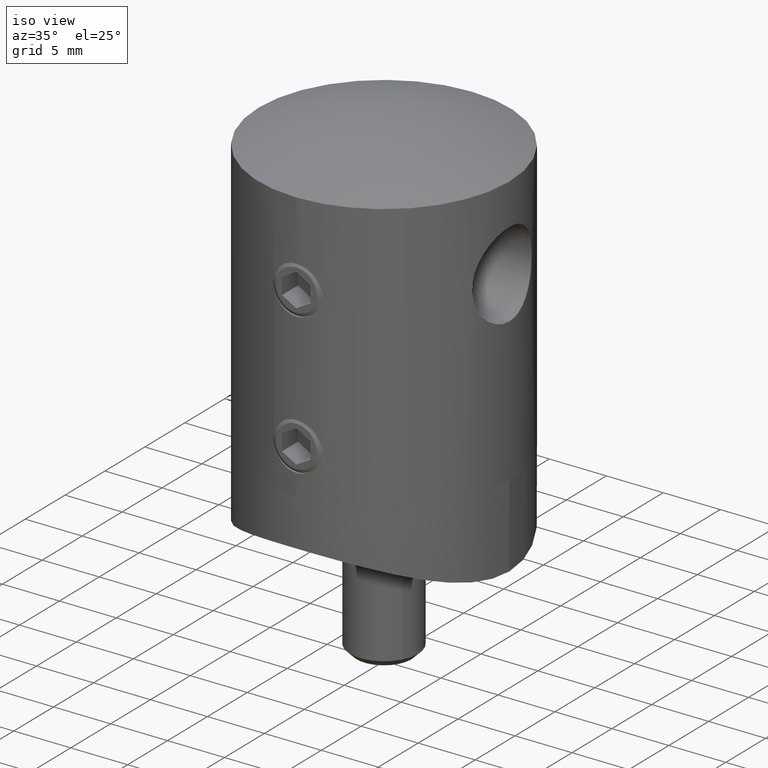
[diagram: clean part render]
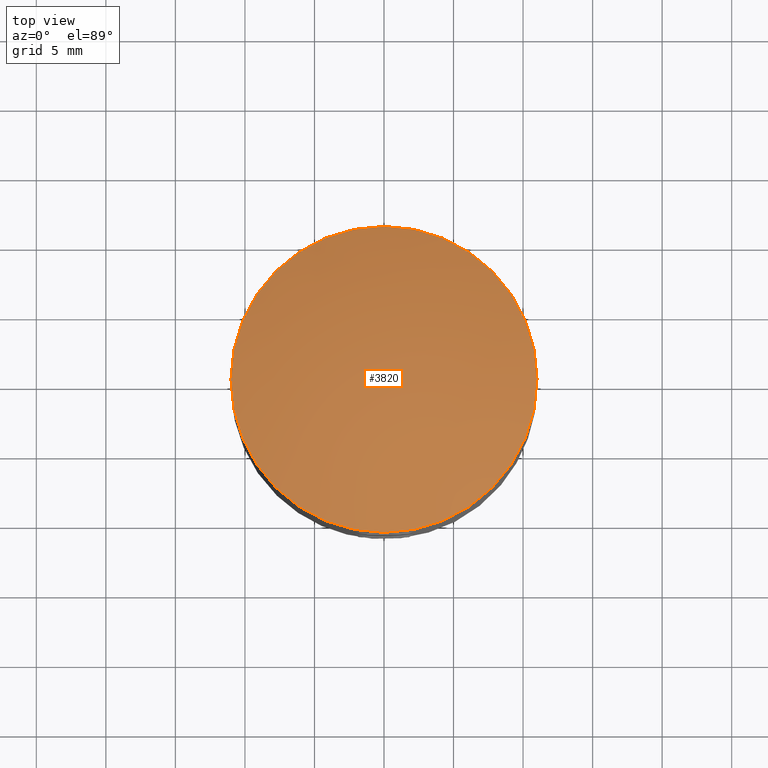
[diagram: tour spotlight — one face highlighted and labeled with its STEP entity id]
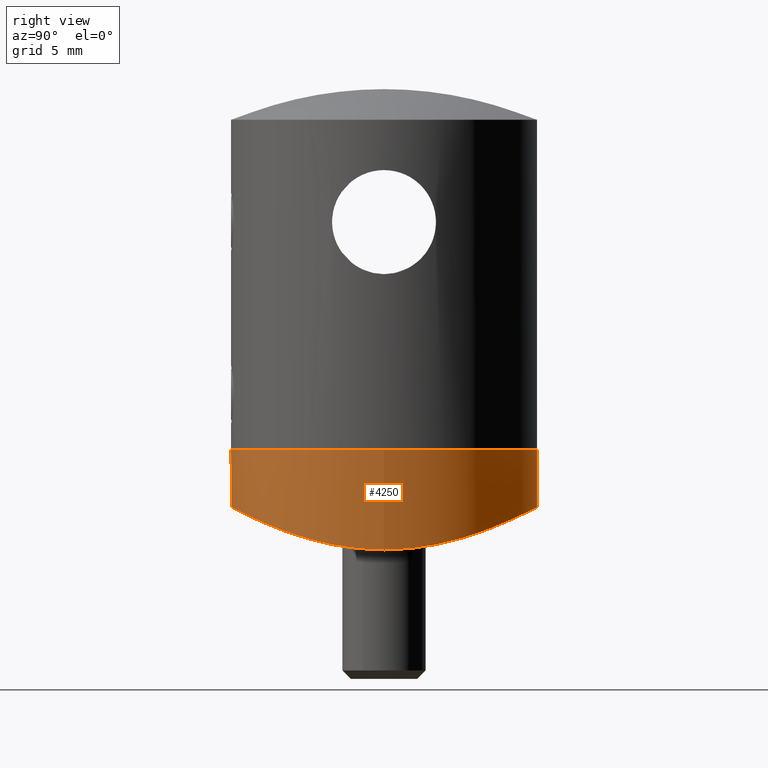
[diagram: tour spotlight — one face highlighted and labeled with its STEP entity id]
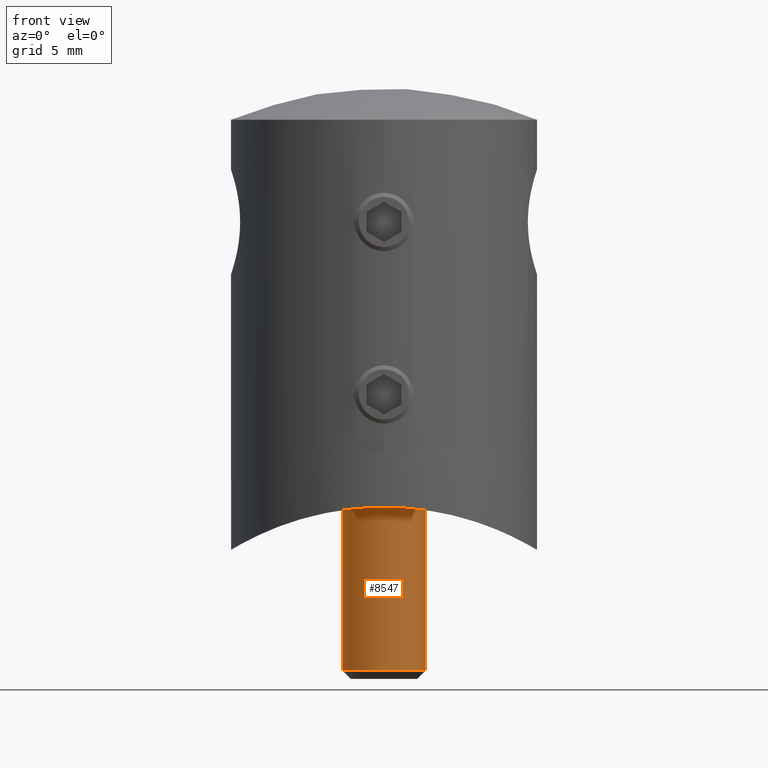
[diagram: tour spotlight — one face highlighted and labeled with its STEP entity id]
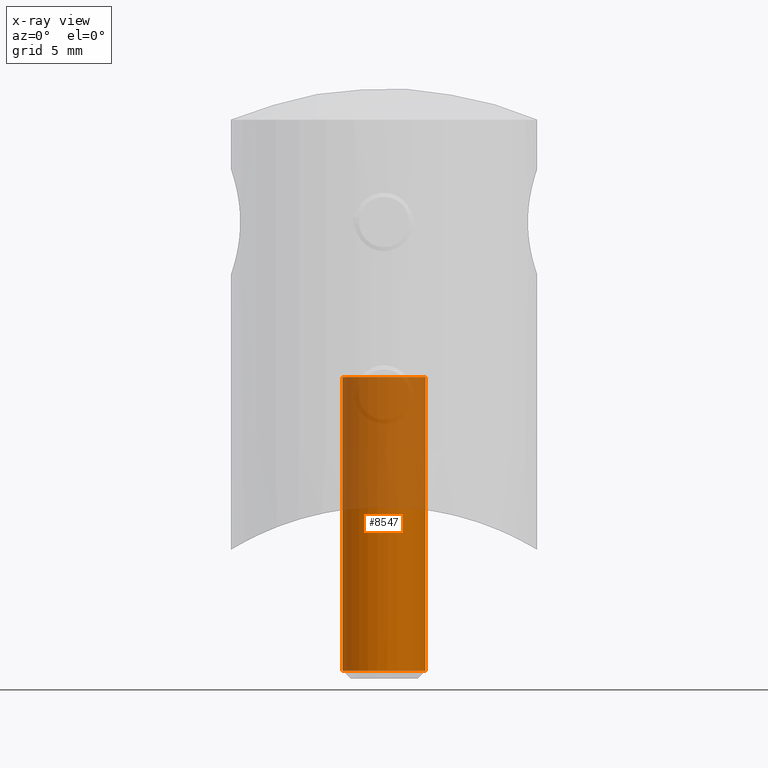
[diagram: x-ray of the same camera — body ghosted, this tour face saturated]
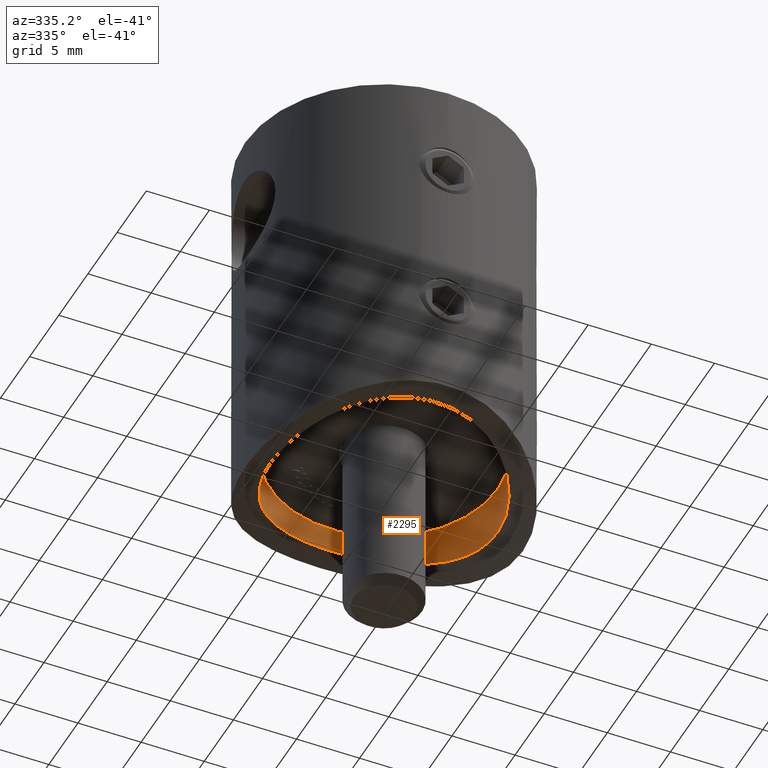
[diagram: tour spotlight — one face highlighted and labeled with its STEP entity id]
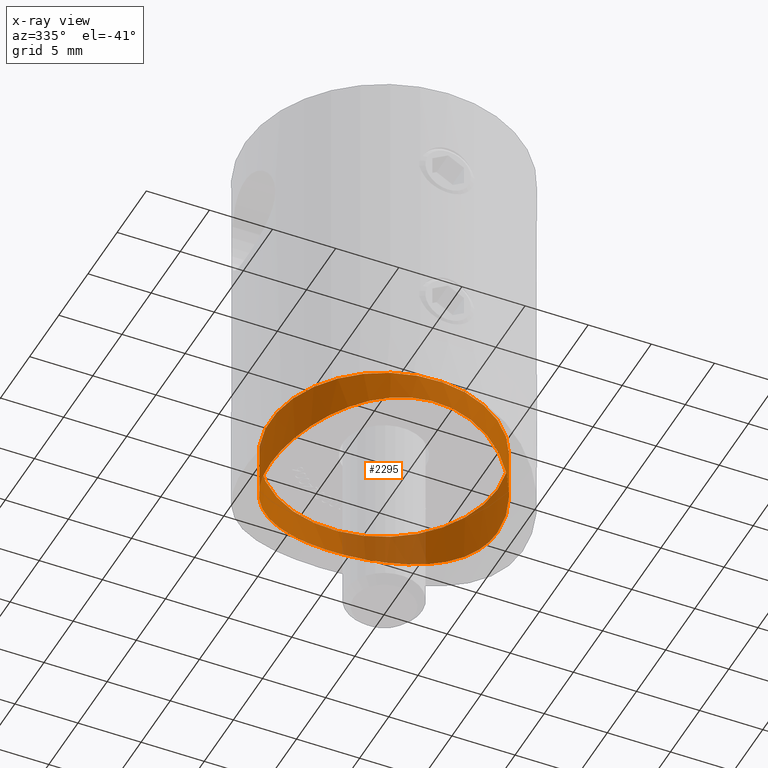
[diagram: x-ray of the same camera — body ghosted, this tour face saturated]
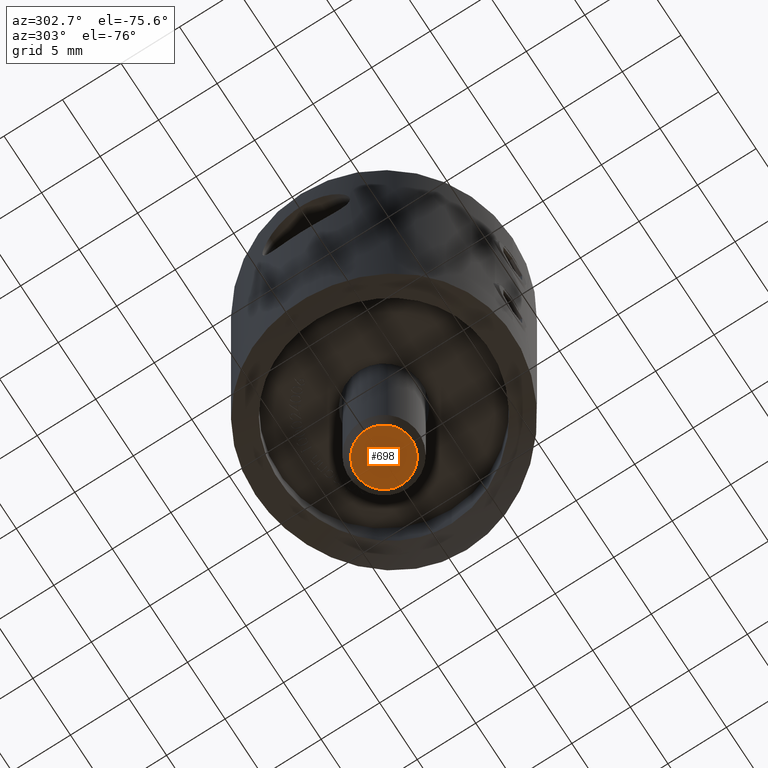
[diagram: tour spotlight — one face highlighted and labeled with its STEP entity id]
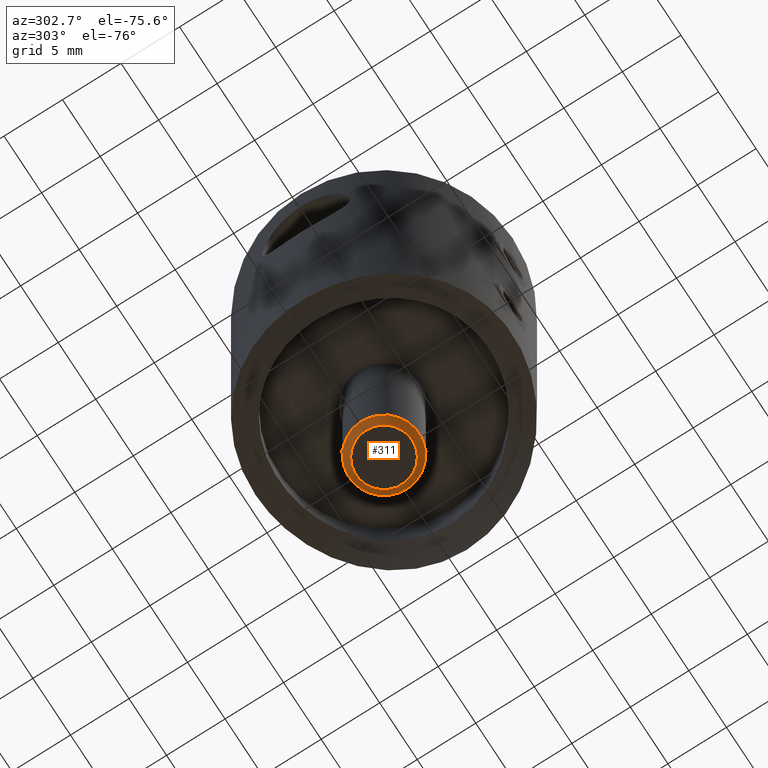
[diagram: tour spotlight — one face highlighted and labeled with its STEP entity id]
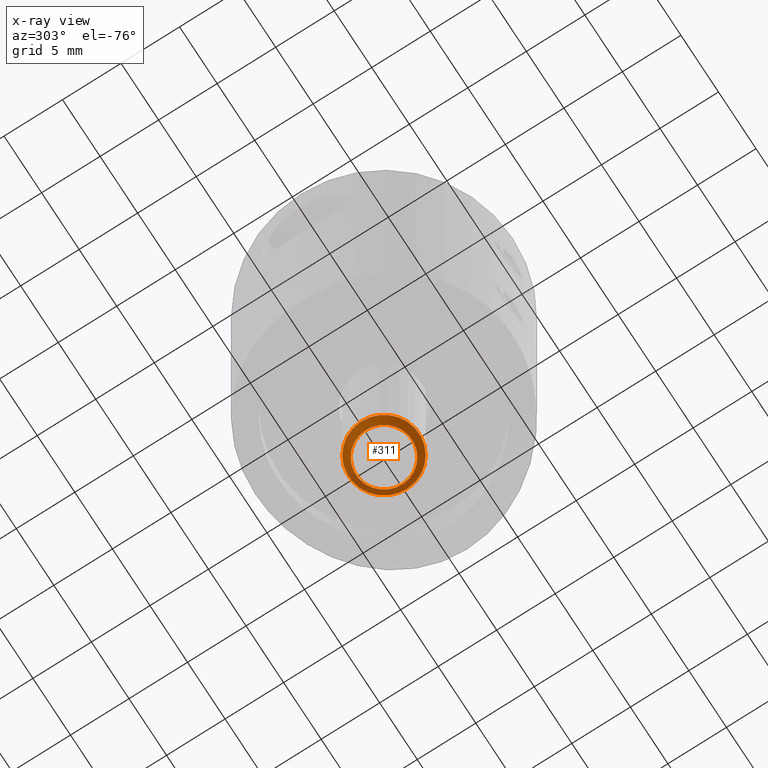
[diagram: x-ray of the same camera — body ghosted, this tour face saturated]
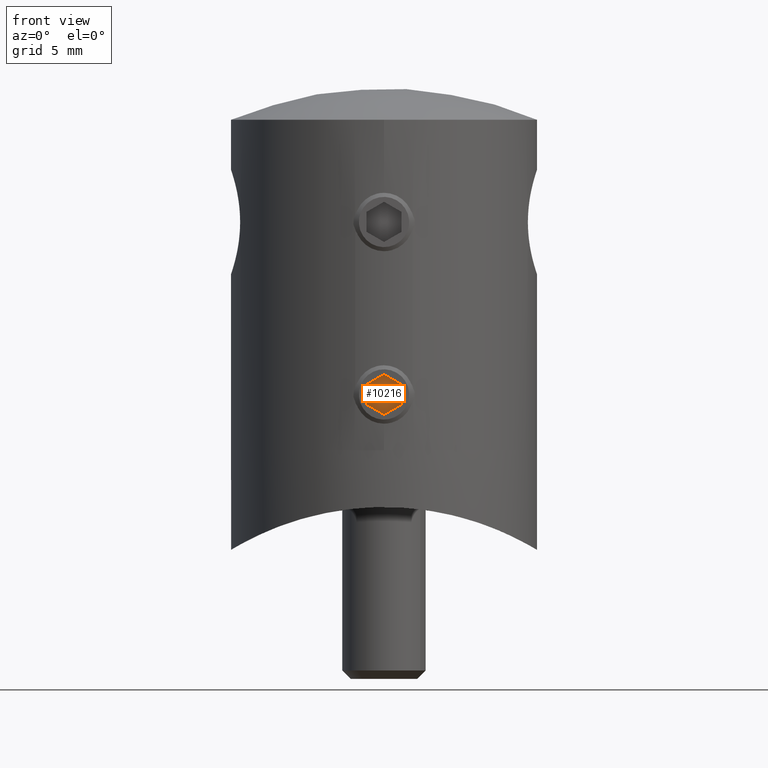
[diagram: tour spotlight — one face highlighted and labeled with its STEP entity id]
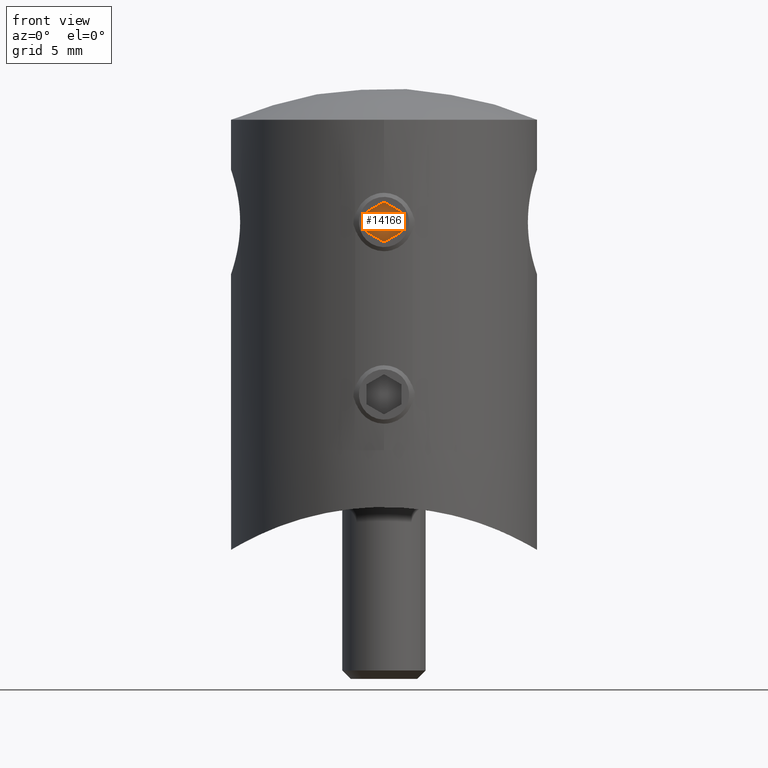
[diagram: tour spotlight — one face highlighted and labeled with its STEP entity id]
A machine part: a face-by-face anatomy tour. The part has 280 B-rep faces; the first image is the clean iso view, then the 8 largest visible faces are spotlighted one at a time (largest first), each with its STEP entity span.

Face 1 — top view, entity #3820. In plain terms, the highlighted spherical surface has radius 28 mm.
Definition (entity closure, byte-faithful):
#818 = CIRCLE ( 'NONE', #14492, 10.99999999999999467 ) ;
#848 = EDGE_CURVE ( 'NONE', #3650, #3650, #818, .T. ) ;
#1986 = EDGE_LOOP ( 'NONE', ( #15665 ) ) ;
#2476 = AXIS2_PLACEMENT_3D ( 'NONE', #16139, #3800, #8106 ) ;
#2912 = FACE_OUTER_BOUND ( 'NONE', #1986, .T. ) ;
#3650 = VERTEX_POINT ( 'NONE', #7486 ) ;
#3779 = SPHERICAL_SURFACE ( 'NONE', #2476, 28.00000000000000000 ) ;
#3800 = DIRECTION ( 'NONE',  ( -1.000000000000000000, 0.000000000000000000, 0.000000000000000000 ) ) ;
#3820 = ADVANCED_FACE ( 'NONE', ( #2912 ), #3779, .T. ) ;
#7486 = CARTESIAN_POINT ( 'NONE',  ( 0.000000000000000000, -10.99999999999999467, 10.74878637916746804 ) ) ;
#8106 = DIRECTION ( 'NONE',  ( 0.000000000000000000, 1.000000000000000000, 0.000000000000000000 ) ) ;
#10015 = DIRECTION ( 'NONE',  ( 0.000000000000000000, -1.000000000000000000, 0.000000000000000000 ) ) ;
#14034 = CARTESIAN_POINT ( 'NONE',  ( 0.000000000000000000, -2.434903461179736260E-17, 10.74878637916746804 ) ) ;
#14492 = AXIS2_PLACEMENT_3D ( 'NONE', #14034, #15389, #10015 ) ;
#15389 = DIRECTION ( 'NONE',  ( -0.000000000000000000, 1.081595917263183534E-17, 1.000000000000000000 ) ) ;
#15665 = ORIENTED_EDGE ( 'NONE', *, *, #848, .T. ) ;
#16139 = CARTESIAN_POINT ( 'NONE',  ( 0.000000000000000000, 2.407412430484044816E-32, -15.00000000000000000 ) ) ;

Face 2 — right view, entity #4250. In plain terms, the highlighted cylindrical surface (bore or boss wall) has radius 11 mm, axis along (0, 0, 1).
Definition (entity closure, byte-faithful):
#17 = CARTESIAN_POINT ( 'NONE',  ( -7.302170533501586291, -8.256750257501979107, -12.89011839089033629 ) ) ;
#72 = CARTESIAN_POINT ( 'NONE',  ( 2.911010120311582572, 10.61404019935326026, -11.79787641917208774 ) ) ;
#133 = CARTESIAN_POINT ( 'NONE',  ( 1.301042606982605321E-15, 11.00000000000000000, -11.59999999999999964 ) ) ;
#193 = CARTESIAN_POINT ( 'NONE',  ( 10.27516049920183328, -3.943162478467042042, -14.25583652523613942 ) ) ;
#245 = CARTESIAN_POINT ( 'NONE',  ( -8.283413177794544779, -7.246433364916081032, -13.28371768784510820 ) ) ;
#1172 = CARTESIAN_POINT ( 'NONE',  ( -10.27662386676604100, 3.939315236133007936, -14.25664998690888474 ) ) ;
#1237 = CARTESIAN_POINT ( 'NONE',  ( -10.41528117107562323, -3.557130990113243740, -14.33444410800807312 ) ) ;
#1319 = AXIS2_PLACEMENT_3D ( 'NONE', #8908, #8963, #3590 ) ;
#1399 = CARTESIAN_POINT ( 'NONE',  ( 6.751038930869322385, 8.714336666387495711, -12.69401431616607923 ) ) ;
#1461 = CARTESIAN_POINT ( 'NONE',  ( 1.473171373248831850, 10.92565001544014969, -11.63885712279881091 ) ) ;
#1476 = ORIENTED_EDGE ( 'NONE', *, *, #4161, .T. ) ;
#1518 = CARTESIAN_POINT ( 'NONE',  ( -8.946157063214457139, -6.410340987925541079, -13.57880891114397315 ) ) ;
#1577 = CARTESIAN_POINT ( 'NONE',  ( -3.618056783575515301, -10.39428456648433041, -11.90807708120661168 ) ) ;
#1645 = CARTESIAN_POINT ( 'NONE',  ( 10.85738286873164782, 1.802597244722825565, -14.59109820587693740 ) ) ;
#2612 = CARTESIAN_POINT ( 'NONE',  ( -9.875430665192812540, -4.898506304307876036, -14.03791841209529778 ) ) ;
#2726 = CARTESIAN_POINT ( 'NONE',  ( -9.525129818815097238, 5.547661062277846611, -13.85521853254647340 ) ) ;
#2747 = EDGE_CURVE ( 'NONE', #7930, #7930, #8903, .T. ) ;
#2779 = CARTESIAN_POINT ( 'NONE',  ( 8.278097161710380902, 7.252522033514988919, -13.28145700051284983 ) ) ;
#2796 = ORIENTED_EDGE ( 'NONE', *, *, #2747, .F. ) ;
#2834 = CARTESIAN_POINT ( 'NONE',  ( -0.7597687210070884767, -10.99873671393910612, -11.60065547794210694 ) ) ;
#2889 = CARTESIAN_POINT ( 'NONE',  ( 1.450018764293075746, -10.92823137575286729, -11.63750624167836456 ) ) ;
#2952 = CARTESIAN_POINT ( 'NONE',  ( 7.265370947308049665, -8.266801335559645025, -12.88170713567118497 ) ) ;
#3003 = CARTESIAN_POINT ( 'NONE',  ( 9.873161535309451509, 4.903180330197458581, -14.03671414845454990 ) ) ;
#3436 = VERTEX_POINT ( 'NONE', #6227 ) ;
#3590 = DIRECTION ( 'NONE',  ( 1.000000000000000000, 0.000000000000000000, 0.000000000000000000 ) ) ;
#3845 = CARTESIAN_POINT ( 'NONE',  ( -11.00095671596697144, -0.3362723641391791585, -14.67766701842605315 ) ) ;
#3966 = CARTESIAN_POINT ( 'NONE',  ( -6.726335332083523078, 8.711012763014794658, -12.69328164865443753 ) ) ;
#4073 = CARTESIAN_POINT ( 'NONE',  ( -9.861474882267893705, 4.925456695663828377, -14.03059339312063791 ) ) ;
#4129 = CARTESIAN_POINT ( 'NONE',  ( 3.942729300353560618, 10.27536326353784091, -11.96713278123405466 ) ) ;
#4161 = EDGE_CURVE ( 'NONE', #3436, #3436, #5786, .T. ) ;
#4194 = CARTESIAN_POINT ( 'NONE',  ( 10.71469878810897569, 2.515422323389402415, -14.50677455487026712 ) ) ;
#4247 = CARTESIAN_POINT ( 'NONE',  ( -2.568634603435102637, -10.70219005078453911, -11.75307963456590343 ) ) ;
#4250 = ADVANCED_FACE ( 'NONE', ( #10965, #17313 ), #15453, .T. ) ;
#4302 = CARTESIAN_POINT ( 'NONE',  ( 6.430521731463012536, -8.931756784388696246, -12.59642194567325113 ) ) ;
#4328 = EDGE_LOOP ( 'NONE', ( #2796 ) ) ;
#4363 = CARTESIAN_POINT ( 'NONE',  ( 8.942069916354780545, 6.416062105208425237, -13.57690246224627550 ) ) ;
#5206 = CARTESIAN_POINT ( 'NONE',  ( -10.91155973602407236, -1.439831204387121311, -14.62365213547231946 ) ) ;
#5272 = CARTESIAN_POINT ( 'NONE',  ( -8.030553191338359653, 7.525557453230570459, -13.17803051963262284 ) ) ;
#5442 = CARTESIAN_POINT ( 'NONE',  ( -10.92357506537258161, 1.484248778063107066, -14.63013877113138328 ) ) ;
#5497 = CARTESIAN_POINT ( 'NONE',  ( -9.538610654621672680, -5.524463585205237059, -13.86203392453093031 ) ) ;
#5552 = CARTESIAN_POINT ( 'NONE',  ( 10.62600282385767869, 2.866984947825592656, -14.45489273567665833 ) ) ;
#5609 = CARTESIAN_POINT ( 'NONE',  ( 9.859201474471776194, -4.930107579918078464, -14.02938905261023450 ) ) ;
#5676 = CARTESIAN_POINT ( 'NONE',  ( 10.92342032833976617, -1.485761362717685996, -14.63004253394177390 ) ) ;
#5739 = CARTESIAN_POINT ( 'NONE',  ( 7.526514171205339387, -8.029672669073885771, -12.97922045469525720 ) ) ;
#5786 = B_SPLINE_CURVE_WITH_KNOTS ( 'NONE', 3,
 ( #12092, #14824, #9440, #7979, #8038, #17401, #14877, #9269, #10832, #6765, #3966, #16177, #13398, #5272, #6647, #9332, #12029, #2726, #4073, #1172, #17455, #16125, #13569, #5442, #8197, #3845, #13345, #5206, #14702, #10669, #9388, #1237, #10723, #2612, #5497, #1518, #9658, #245, #11055, #17, #11004, #9776, #7116, #15103, #1577, #7001, #4247, #14989, #2834, #12431, #2889, #15047, #13793, #11111, #12315, #13738, #13677, #4302, #16516, #2952, #5739, #16454, #15222, #8430, #8371, #12375, #5609, #193, #6875, #16397, #8259, #5676, #9557, #7056, #9721, #15158, #1645, #4194, #5552, #6937, #16341, #3003, #12496, #4363, #16574, #2779, #10940, #13853, #1399, #10886, #12258, #4129, #13625, #72, #9603, #1461, #8318, #133 ),
 .UNSPECIFIED., .T., .F.,
 ( 4, 2, 2, 2, 2, 2, 2, 2, 2, 2, 2, 2, 2, 2, 2, 2, 2, 2, 2, 2, 2, 2, 2, 2, 2, 2, 2, 2, 2, 2, 2, 2, 2, 2, 2, 2, 2, 2, 2, 2, 2, 2, 2, 2, 2, 2, 2, 2, 4 ),
 ( 0.000000000000000000, 0.002187934825496551643, 0.003281902238244827682, 0.004375869650993103287, 0.006563804476489659701, 0.007657771889237936606, 0.008751739301986215247, 0.009845706714734489551, 0.01093967412748276732, 0.01312760895297931767, 0.01422157636572759717, 0.01531554377847587321, 0.01750347860397243049, 0.01859744601672070827, 0.01969141342946898951, 0.02078538084221726728, 0.02187934825496554159, 0.02406728308046209366, 0.02516125049321037144, 0.02625521790595865268, 0.02844315273145521863, 0.03063108755695177765, 0.03172505496970005889, 0.03281902238244834707, 0.03500695720794490956, 0.03719489203344146511, 0.03828885944618975329, 0.03938282685893803453, 0.04157076168443459702, 0.04266472909718287826, 0.04375869650993116644, 0.04485266392267944074, 0.04594663133542772893, 0.04813456616092428447, 0.04922853357367257265, 0.05032250098642085390, 0.05251043581191740944, 0.05360440322466569069, 0.05469837063741397193, 0.05579233805016223929, 0.05688630546291052054, 0.05907424028840707608, 0.06016820770115535733, 0.06126217511390362469, 0.06345010993940018718, 0.06563804476489674966, 0.06673201217764501703, 0.06782597959039329827, 0.07001391441588986075 ),
 .UNSPECIFIED. ) ;
#6227 = CARTESIAN_POINT ( 'NONE',  ( 0.000000000000000000, 11.00000000000000000, -11.59999999999999609 ) ) ;
#6647 = CARTESIAN_POINT ( 'NONE',  ( -8.267252112555274479, 7.264819172052007445, -13.27686699303411721 ) ) ;
#6761 = CARTESIAN_POINT ( 'NONE',  ( 0.000000000000000000, 0.000000000000000000, -7.500000000000000000 ) ) ;
#6765 = CARTESIAN_POINT ( 'NONE',  ( -6.439299872946981473, 8.925416446572304707, -12.59922519955891040 ) ) ;
#6875 = CARTESIAN_POINT ( 'NONE',  ( 10.39876306380578441, -3.605291737344609171, -14.32512190629250703 ) ) ;
#6937 = CARTESIAN_POINT ( 'NONE',  ( 10.41407464369210345, 3.560700495590567449, -14.33376200013197810 ) ) ;
#7001 = CARTESIAN_POINT ( 'NONE',  ( -2.925658849690202512, -10.60999560949298726, -11.79992146611802717 ) ) ;
#7056 = CARTESIAN_POINT ( 'NONE',  ( 11.00095804591471271, 0.3366441121642689827, -14.67766782565361616 ) ) ;
#7116 = CARTESIAN_POINT ( 'NONE',  ( -4.943802252208722159, -9.852434326155032451, -12.17352895009744351 ) ) ;
#7930 = VERTEX_POINT ( 'NONE', #12728 ) ;
#7979 = CARTESIAN_POINT ( 'NONE',  ( -2.534605363637614683, 10.71016810989787160, -11.74901714937535147 ) ) ;
#8038 = CARTESIAN_POINT ( 'NONE',  ( -2.887143263169894780, 10.62062965829993466, -11.79454505812947751 ) ) ;
#8197 = CARTESIAN_POINT ( 'NONE',  ( -10.99796416059427351, 0.7624273080982860717, -14.67585064702982045 ) ) ;
#8259 = CARTESIAN_POINT ( 'NONE',  ( 10.70548991689182650, -2.554336560334249384, -14.50137704262106197 ) ) ;
#8318 = CARTESIAN_POINT ( 'NONE',  ( 0.7406705943471965092, 11.00000000000000000, -11.59999999999999964 ) ) ;
#8371 = CARTESIAN_POINT ( 'NONE',  ( 8.926501038482161476, -6.437702758294284955, -13.56966006431692939 ) ) ;
#8430 = CARTESIAN_POINT ( 'NONE',  ( 8.712288311989494716, -6.724680546843050166, -13.47135757604658224 ) ) ;
#8903 = CIRCLE ( 'NONE', #14959, 11.00000000000000000 ) ;
#8908 = CARTESIAN_POINT ( 'NONE',  ( 0.000000000000000000, 0.000000000000000000, 0.000000000000000000 ) ) ;
#8963 = DIRECTION ( 'NONE',  ( -0.000000000000000000, -0.000000000000000000, 1.000000000000000000 ) ) ;
#9030 = EDGE_LOOP ( 'NONE', ( #1476 ) ) ;
#9269 = CARTESIAN_POINT ( 'NONE',  ( -4.923079105735863159, 9.863131060690513152, -12.16841741404475385 ) ) ;
#9332 = CARTESIAN_POINT ( 'NONE',  ( -8.716802038868268099, 6.718810706542203803, -13.47339807117110944 ) ) ;
#9388 = CARTESIAN_POINT ( 'NONE',  ( -10.62677363607029513, -2.864078358060011986, -14.45534087641415155 ) ) ;
#9440 = CARTESIAN_POINT ( 'NONE',  ( -1.466544211326205716, 10.92597589430075544, -11.63867533959842149 ) ) ;
#9557 = CARTESIAN_POINT ( 'NONE',  ( 10.99796142286719558, -0.7631993750306965696, -14.67584898533376148 ) ) ;
#9603 = CARTESIAN_POINT ( 'NONE',  ( 2.553370281160622035, 10.70585427446112448, -11.75121498403395925 ) ) ;
#9658 = CARTESIAN_POINT ( 'NONE',  ( -8.732908924252619443, -6.697912518608935883, -13.48067001983507929 ) ) ;
#9721 = CARTESIAN_POINT ( 'NONE',  ( 10.98332551298761928, 0.7085810926461704184, -14.66692729997106781 ) ) ;
#9776 = CARTESIAN_POINT ( 'NONE',  ( -5.570603964703560784, -9.512269030523047064, -12.33553910741896686 ) ) ;
#10669 = CARTESIAN_POINT ( 'NONE',  ( -10.71528815456445827, -2.512856684892081471, -14.50712053433533733 ) ) ;
#10723 = CARTESIAN_POINT ( 'NONE',  ( -10.29149823902168848, -3.900632987773537064, -14.26489754331610271 ) ) ;
#10832 = CARTESIAN_POINT ( 'NONE',  ( -5.550192168805613058, 9.523966257985302164, -12.33004864547032930 ) ) ;
#10886 = CARTESIAN_POINT ( 'NONE',  ( 5.560167059122317568, 9.518441703131335530, -12.33266677753794127 ) ) ;
#10940 = CARTESIAN_POINT ( 'NONE',  ( 8.041161226536594597, 7.514245521208877676, -13.18237426070328411 ) ) ;
#10965 = FACE_OUTER_BOUND ( 'NONE', #4328, .T. ) ;
#11004 = CARTESIAN_POINT ( 'NONE',  ( -6.759157635817618193, -8.707966392607826123, -12.69677696960714108 ) ) ;
#11055 = CARTESIAN_POINT ( 'NONE',  ( -8.046905916783089197, -7.508076317887008244, -13.18473616762402401 ) ) ;
#11111 = CARTESIAN_POINT ( 'NONE',  ( 3.571492123359850890, -10.41047811056077599, -11.90001245452166678 ) ) ;
#12029 = CARTESIAN_POINT ( 'NONE',  ( -8.930618402654808108, 6.431968227375032043, -13.57157662014703092 ) ) ;
#12092 = CARTESIAN_POINT ( 'NONE',  ( 1.301042606982605321E-15, 11.00000000000000000, -11.59999999999999964 ) ) ;
#12258 = CARTESIAN_POINT ( 'NONE',  ( 4.932555817687875432, 9.858129195720238158, -12.17080281087531013 ) ) ;
#12315 = CARTESIAN_POINT ( 'NONE',  ( 3.914632898889375490, -10.28617914363168673, -11.96179597942285078 ) ) ;
#12375 = CARTESIAN_POINT ( 'NONE',  ( 9.522201759813427202, -5.552785249052771377, -13.85372720102428978 ) ) ;
#12431 = CARTESIAN_POINT ( 'NONE',  ( 0.7227376097852464820, -11.00123212005704332, -11.59936069308925966 ) ) ;
#12496 = CARTESIAN_POINT ( 'NONE',  ( 9.535691784962624595, 5.529597769247919459, -13.86054500461860606 ) ) ;
#12728 = CARTESIAN_POINT ( 'NONE',  ( 11.00000000000000000, 0.000000000000000000, -7.500000000000000000 ) ) ;
#13345 = CARTESIAN_POINT ( 'NONE',  ( -10.98336212680088408, -0.7078178872453692039, -14.66694967864762411 ) ) ;
#13398 = CARTESIAN_POINT ( 'NONE',  ( -7.533196738643102464, 8.023387466506017418, -12.98176552403619510 ) ) ;
#13569 = CARTESIAN_POINT ( 'NONE',  ( -10.70609504061672546, 2.551744627168780699, -14.50173187696236354 ) ) ;
#13625 = CARTESIAN_POINT ( 'NONE',  ( 3.604598230182754381, 10.39897595309302147, -11.90574130475341619 ) ) ;
#13677 = CARTESIAN_POINT ( 'NONE',  ( 5.539944961748630270, -9.529982465774113010, -12.32724460251717602 ) ) ;
#13738 = CARTESIAN_POINT ( 'NONE',  ( 4.911781572463934431, -9.868826182287612880, -12.16568896402251987 ) ) ;
#13793 = CARTESIAN_POINT ( 'NONE',  ( 2.872500579954686550, -10.62461062325798800, -11.79253047588712988 ) ) ;
#13853 = CARTESIAN_POINT ( 'NONE',  ( 7.295062090776487373, 8.263093100550676695, -12.88748827584010570 ) ) ;
#14702 = CARTESIAN_POINT ( 'NONE',  ( -10.85767978748991069, -1.800732791529440213, -14.59127601908858907 ) ) ;
#14824 = CARTESIAN_POINT ( 'NONE',  ( -0.7406705943471938447, 11.00000000000000000, -11.59999999999999787 ) ) ;
#14875 = DIRECTION ( 'NONE',  ( -0.000000000000000000, -0.000000000000000000, 1.000000000000000000 ) ) ;
#14877 = CARTESIAN_POINT ( 'NONE',  ( -3.927659131958693983, 10.28119688040085578, -11.96425617565459731 ) ) ;
#14959 = AXIS2_PLACEMENT_3D ( 'NONE', #6761, #14875, #16339 ) ;
#14989 = CARTESIAN_POINT ( 'NONE',  ( -1.489797381646276397, -10.92334775597403151, -11.64005042205452867 ) ) ;
#15047 = CARTESIAN_POINT ( 'NONE',  ( 2.519497726041666219, -10.71374491310898591, -11.74719602213467340 ) ) ;
#15103 = CARTESIAN_POINT ( 'NONE',  ( -3.955618928625290742, -10.27039383892053159, -11.96958471220858122 ) ) ;
#15158 = CARTESIAN_POINT ( 'NONE',  ( 10.91137382201429240, 1.441335424306747326, -14.62354032862724118 ) ) ;
#15222 = CARTESIAN_POINT ( 'NONE',  ( 8.261920929934328583, -7.270898062538838857, -13.27460504543394038 ) ) ;
#15453 = CYLINDRICAL_SURFACE ( 'NONE', #1319, 11.00000000000000000 ) ;
#16125 = CARTESIAN_POINT ( 'NONE',  ( -10.61508951118036315, 2.907236130726283285, -14.44856384057125354 ) ) ;
#16177 = CARTESIAN_POINT ( 'NONE',  ( -7.272540038032670573, 8.260477695161064560, -12.88433101160838490 ) ) ;
#16339 = DIRECTION ( 'NONE',  ( 1.000000000000000000, 0.000000000000000000, 0.000000000000000000 ) ) ;
#16341 = CARTESIAN_POINT ( 'NONE',  ( 10.29003781357059566, 3.904516078654895583, -14.26408417537543372 ) ) ;
#16397 = CARTESIAN_POINT ( 'NONE',  ( 10.61428986060925794, -2.910198021355983489, -14.44809970086225448 ) ) ;
#16454 = CARTESIAN_POINT ( 'NONE',  ( 8.024789599291722197, -7.531720296779902846, -13.17566640010353929 ) ) ;
#16516 = CARTESIAN_POINT ( 'NONE',  ( 6.718128661082546138, -8.717360071531969012, -12.69053076472923358 ) ) ;
#16574 = CARTESIAN_POINT ( 'NONE',  ( 8.728404665100937265, 6.703798957873230435, -13.47862930732423514 ) ) ;
#17313 = FACE_OUTER_BOUND ( 'NONE', #9030, .T. ) ;
#17401 = CARTESIAN_POINT ( 'NONE',  ( -3.585217736092201513, 10.40574765913711097, -11.90236981565062990 ) ) ;
#17455 = CARTESIAN_POINT ( 'NONE',  ( -10.39998561565556479, 3.601728257979622150, -14.32581169203589688 ) ) ;

Face 3 — front view, entity #8547. An x-ray twin of the same camera follows (body ghosted, this face saturated) — the face is partly hidden behind the body. In plain terms, the highlighted cylindrical surface (bore or boss wall) has radius 3 mm, axis along (-0, 0, 1).
Definition (entity closure, byte-faithful):
#1563 = EDGE_LOOP ( 'NONE', ( #7713 ) ) ;
#1779 = DIRECTION ( 'NONE',  ( -0.000000000000000000, 1.224646799147351975E-16, -1.000000000000000000 ) ) ;
#2319 = EDGE_CURVE ( 'NONE', #6842, #6842, #10573, .T. ) ;
#4378 = DIRECTION ( 'NONE',  ( 0.000000000000000000, 1.000000000000000000, 1.445602896647341135E-16 ) ) ;
#4714 = CIRCLE ( 'NONE', #14417, 2.999999999999996003 ) ;
#4902 = CARTESIAN_POINT ( 'NONE',  ( 0.000000000000000000, 2.999999999999995559, 3.299999999999997158 ) ) ;
#6842 = VERTEX_POINT ( 'NONE', #11542 ) ;
#7167 = AXIS2_PLACEMENT_3D ( 'NONE', #13221, #13350, #14880 ) ;
#7195 = CYLINDRICAL_SURFACE ( 'NONE', #7167, 2.999999999999993783 ) ;
#7361 = ORIENTED_EDGE ( 'NONE', *, *, #2319, .T. ) ;
#7378 = AXIS2_PLACEMENT_3D ( 'NONE', #16707, #1779, #12620 ) ;
#7713 = ORIENTED_EDGE ( 'NONE', *, *, #17437, .F. ) ;
#8547 = ADVANCED_FACE ( 'NONE', ( #14594, #10778 ), #7195, .T. ) ;
#10573 = CIRCLE ( 'NONE', #7378, 2.999999999999993783 ) ;
#10778 = FACE_OUTER_BOUND ( 'NONE', #1563, .T. ) ;
#11067 = CARTESIAN_POINT ( 'NONE',  ( 0.000000000000000000, -4.041334437186261072E-16, 3.299999999999997158 ) ) ;
#11188 = DIRECTION ( 'NONE',  ( -0.000000000000000000, 1.224646799147352961E-16, -1.000000000000000000 ) ) ;
#11542 = CARTESIAN_POINT ( 'NONE',  ( 0.000000000000000000, -2.999999999999996891, 24.39999999999999858 ) ) ;
#12620 = DIRECTION ( 'NONE',  ( 0.000000000000000000, -1.000000000000000000, 0.000000000000000000 ) ) ;
#13221 = CARTESIAN_POINT ( 'NONE',  ( 0.000000000000000000, 0.000000000000000000, 0.000000000000000000 ) ) ;
#13350 = DIRECTION ( 'NONE',  ( -0.000000000000000000, 1.224646799147353207E-16, -1.000000000000000000 ) ) ;
#14417 = AXIS2_PLACEMENT_3D ( 'NONE', #11067, #11188, #4378 ) ;
#14594 = FACE_OUTER_BOUND ( 'NONE', #17057, .T. ) ;
#14880 = DIRECTION ( 'NONE',  ( 0.000000000000000000, 1.000000000000000000, 1.224646799147353454E-16 ) ) ;
#16572 = VERTEX_POINT ( 'NONE', #4902 ) ;
#16707 = CARTESIAN_POINT ( 'NONE',  ( 0.000000000000000000, -2.988138189919541717E-15, 24.39999999999999858 ) ) ;
#17057 = EDGE_LOOP ( 'NONE', ( #7361 ) ) ;
#17437 = EDGE_CURVE ( 'NONE', #16572, #16572, #4714, .T. ) ;

Face 4 — auxiliary view, entity #2295. An x-ray twin of the same camera follows (body ghosted, this face saturated) — the face is partly hidden behind the body. In plain terms, the highlighted cylindrical surface (bore or boss wall) has radius 9 mm, axis along (0, 0, 1).
Definition (entity closure, byte-faithful):
#142 = FACE_OUTER_BOUND ( 'NONE', #607, .T. ) ;
#199 = CARTESIAN_POINT ( 'NONE',  ( -8.939971974155939805, -1.198140283409453222, -13.57673377086508992 ) ) ;
#254 = CARTESIAN_POINT ( 'NONE',  ( -8.536066545482778878, 2.912700169554779617, -13.39288029292577242 ) ) ;
#319 = CARTESIAN_POINT ( 'NONE',  ( 5.261681691625376800, -7.307607166974759316, -12.26179666198278007 ) ) ;
#377 = CARTESIAN_POINT ( 'NONE',  ( -6.575604964608826819, 6.151986061130796379, -12.64439672420785854 ) ) ;
#436 = CARTESIAN_POINT ( 'NONE',  ( -1.478072324521910064, -8.882734505041492312, -11.64958208143097806 ) ) ;
#607 = EDGE_LOOP ( 'NONE', ( #13275 ) ) ;
#1527 = CARTESIAN_POINT ( 'NONE',  ( -5.953767838570619197, -6.774246431175879657, -12.44863101267569050 ) ) ;
#1588 = CARTESIAN_POINT ( 'NONE',  ( -2.349030549496113895, -8.708199343826661831, -11.72248688331314348 ) ) ;
#1632 = CIRCLE ( 'NONE', #17327, 9.000000000000001776 ) ;
#1654 = CARTESIAN_POINT ( 'NONE',  ( -8.068293523425877467, 3.998611255628524486, -13.19476908392905656 ) ) ;
#1714 = CARTESIAN_POINT ( 'NONE',  ( -5.496644906564070787, -7.150322684329971423, -12.31889916052555378 ) ) ;
#1767 = CARTESIAN_POINT ( 'NONE',  ( 9.000000000000000000, -0.6022301676324369746, -13.60520903995044506 ) ) ;
#1828 = CARTESIAN_POINT ( 'NONE',  ( -4.532780756239585429, 7.780812614444894137, -12.08854762177229780 ) ) ;
#1874 = FACE_OUTER_BOUND ( 'NONE', #9957, .T. ) ;
#1890 = CARTESIAN_POINT ( 'NONE',  ( 2.919603497746493304, 8.533584350906098237, -11.79478858131836994 ) ) ;
#1950 = CARTESIAN_POINT ( 'NONE',  ( 5.501311983712241727, 7.146811310810107010, -12.32013601802289848 ) ) ;
#1956 = VERTEX_POINT ( 'NONE', #7607 ) ;
#2008 = CARTESIAN_POINT ( 'NONE',  ( 5.950024793402116430, 6.777821217551544208, -12.44748217056694628 ) ) ;
#2072 = CARTESIAN_POINT ( 'NONE',  ( 6.767985068317844188, 5.939641931502991135, -12.70839076729066441 ) ) ;
#2295 = ADVANCED_FACE ( 'NONE', ( #1874, #142 ), #14174, .F. ) ;
#2899 = CARTESIAN_POINT ( 'NONE',  ( 0.6064474908965818978, -8.999256637721655849, -11.60031557812865266 ) ) ;
#2960 = CARTESIAN_POINT ( 'NONE',  ( -8.883445497185364914, 1.474070503388011266, -13.55088271687597334 ) ) ;
#3012 = CARTESIAN_POINT ( 'NONE',  ( -7.316073530914037448, 5.249737311130734163, -12.90163296229247791 ) ) ;
#3072 = CARTESIAN_POINT ( 'NONE',  ( -7.786055058421188058, -4.523650702319247152, -13.08097825999265851 ) ) ;
#3136 = CARTESIAN_POINT ( 'NONE',  ( 6.161404844027699390, -6.566661741195221502, -12.51396548706217438 ) ) ;
#3316 = CARTESIAN_POINT ( 'NONE',  ( 4.531143009220560458, 7.798082359429838739, -12.08387089023602812 ) ) ;
#3855 = VERTEX_POINT ( 'NONE', #14276 ) ;
#3924 = EDGE_CURVE ( 'NONE', #3855, #3855, #1632, .T. ) ;
#4255 = CARTESIAN_POINT ( 'NONE',  ( 8.519085452557790816, -2.917802884023283472, -13.38675080033652875 ) ) ;
#4373 = CARTESIAN_POINT ( 'NONE',  ( -7.142772226264598956, 5.483223177737656329, -12.83855970004989189 ) ) ;
#4434 = CARTESIAN_POINT ( 'NONE',  ( -0.2865226143655689173, -9.000361350476721256, -11.59984659659287587 ) ) ;
#4484 = CARTESIAN_POINT ( 'NONE',  ( 7.312433258681625858, -5.254898464817228998, -12.90028524384253927 ) ) ;
#4607 = CARTESIAN_POINT ( 'NONE',  ( -5.955765860730123151, 6.772806331197206653, -12.44916342606509652 ) ) ;
#4669 = CARTESIAN_POINT ( 'NONE',  ( 7.138145225870883515, 5.489248663871817868, -12.83690239017899337 ) ) ;
#4788 = CARTESIAN_POINT ( 'NONE',  ( -2.369100941744517019, 8.702862009132205756, -11.72469854016720525 ) ) ;
#5618 = CARTESIAN_POINT ( 'NONE',  ( -8.064130121432256715, -4.006978217306452983, -13.19305538488321616 ) ) ;
#5686 = CARTESIAN_POINT ( 'NONE',  ( -0.5875516269330836039, -8.985797788739249725, -11.60604218590823677 ) ) ;
#5746 = CARTESIAN_POINT ( 'NONE',  ( 6.766048313375112144, -5.941849588956706896, -12.70773756987710001 ) ) ;
#5868 = CARTESIAN_POINT ( 'NONE',  ( 8.693075955343488204, -2.349217114833196618, -13.46403630871103374 ) ) ;
#5932 = CARTESIAN_POINT ( 'NONE',  ( -1.198462509687666877, 8.924876651340719391, -11.63180013284765124 ) ) ;
#5993 = CARTESIAN_POINT ( 'NONE',  ( 8.533054436092356809, 2.922138815264550882, -13.39152866945267739 ) ) ;
#6002 = EDGE_CURVE ( 'NONE', #1956, #1956, #7761, .T. ) ;
#6055 = CARTESIAN_POINT ( 'NONE',  ( 7.796916004019782243, 4.532705707074544677, -13.08280703318132687 ) ) ;
#6118 = CARTESIAN_POINT ( 'NONE',  ( -0.6023502318451330328, 8.984815514353620358, -11.60645918679391997 ) ) ;
#7008 = CARTESIAN_POINT ( 'NONE',  ( 2.928297529281813638, -8.515469180634774204, -11.80126484293778155 ) ) ;
#7065 = CARTESIAN_POINT ( 'NONE',  ( 4.529556461873101014, -7.799281068273507422, -12.08344911502852881 ) ) ;
#7070 = DIRECTION ( 'NONE',  ( 1.000000000000000000, 0.000000000000000000, 0.000000000000000000 ) ) ;
#7075 = CARTESIAN_POINT ( 'NONE',  ( 0.000000000000000000, 0.000000000000000000, 0.000000000000000000 ) ) ;
#7085 = ORIENTED_EDGE ( 'NONE', *, *, #6002, .T. ) ;
#7127 = CARTESIAN_POINT ( 'NONE',  ( 8.417805771125104641, -3.197972917069189513, -13.34246350072027631 ) ) ;
#7190 = CARTESIAN_POINT ( 'NONE',  ( -9.000400974029085788, 0.2839722160764812653, -13.60539704731253607 ) ) ;
#7308 = CARTESIAN_POINT ( 'NONE',  ( -2.930983491255343409, 8.529688198176652136, -11.79637823758307391 ) ) ;
#7366 = CARTESIAN_POINT ( 'NONE',  ( 1.177433114945624082, 8.942818534641482131, -11.62448232037809781 ) ) ;
#7428 = CARTESIAN_POINT ( 'NONE',  ( 9.000000000000001776, 8.131516293641283255E-17, -13.60520903995044506 ) ) ;
#7541 = CARTESIAN_POINT ( 'NONE',  ( -4.783214464045448366, 7.629261748838104928, -12.14515352927832836 ) ) ;
#7607 = CARTESIAN_POINT ( 'NONE',  ( 9.000000000000001776, 0.000000000000000000, -13.60520903995044506 ) ) ;
#7761 = B_SPLINE_CURVE_WITH_KNOTS ( 'NONE', 3,
 ( #15282, #1767, #11014, #8501, #5868, #4255, #7127, #11184, #15336, #4484, #9901, #5746, #11242, #3136, #12613, #12383, #319, #7065, #13801, #13981, #7008, #16699, #12505, #8610, #2899, #4434, #5686, #16466, #436, #1588, #15111, #15232, #16526, #1714, #1527, #9833, #13747, #16580, #3072, #5618, #8441, #12556, #8380, #199, #13919, #7190, #9729, #11062, #2960, #16636, #254, #9786, #1654, #11120, #8554, #3012, #4373, #13861, #377, #4607, #15395, #7541, #1828, #12847, #14094, #7308, #4788, #10020, #5932, #6118, #10136, #14158, #7366, #8674, #1890, #12726, #3316, #1950, #2008, #16821, #2072, #4669, #14222, #6055, #15525, #5993, #11483, #12785, #10194, #15466, #16758, #7428 ),
 .UNSPECIFIED., .T., .F.,
 ( 4, 2, 2, 2, 2, 2, 2, 2, 2, 2, 2, 2, 2, 2, 2, 2, 2, 2, 2, 2, 2, 2, 2, 2, 2, 2, 2, 2, 2, 2, 2, 2, 2, 2, 2, 2, 2, 2, 2, 2, 2, 2, 2, 2, 2, 4 ),
 ( 0.000000000000000000, 0.001779121269481608947, 0.002668681904222413963, 0.003558242538963218762, 0.005337363808444828793, 0.006226924443185632291, 0.007116485077926435789, 0.008006045712667239286, 0.008895606347408041917, 0.01067472761688964891, 0.01156428825163045501, 0.01245384888637125938, 0.01423297015585286811, 0.01512253079059367421, 0.01601209142533447857, 0.01779121269481609077, 0.01957033396429769950, 0.02134945523377930823, 0.02312857650326091696, 0.02401813713800172306, 0.02490769777274252569, 0.02668681904222413442, 0.02846594031170574315, 0.02935550094644654925, 0.03024506158118735535, 0.03202418285066896408, 0.03291374348540977018, 0.03380330412015057628, 0.03469286475489137545, 0.03558242538963218154, 0.03736154665911378681, 0.03825110729385459291, 0.03914066792859539901, 0.04091978919807700427, 0.04180934983281781037, 0.04269891046755861647, 0.04447803173704022867, 0.04625715300652183393, 0.04803627427600344613, 0.04981539554548505139, 0.05070495618022585749, 0.05159451681496665665, 0.05337363808444827579, 0.05515275935392989493, 0.05604231998867070103, 0.05693188062341151406 ),
 .UNSPECIFIED. ) ;
#8157 = DIRECTION ( 'NONE',  ( -0.000000000000000000, -0.000000000000000000, 1.000000000000000000 ) ) ;
#8380 = CARTESIAN_POINT ( 'NONE',  ( -8.702408039283346497, -2.372073640349044332, -13.46802757779980197 ) ) ;
#8441 = CARTESIAN_POINT ( 'NONE',  ( -8.189956734736416166, -3.743000991661145971, -13.24547006911485880 ) ) ;
#8501 = CARTESIAN_POINT ( 'NONE',  ( 8.765548746403906577, -2.062165950460748132, -13.49691077563805308 ) ) ;
#8554 = CARTESIAN_POINT ( 'NONE',  ( -7.639907694094674184, 4.766181298621789963, -13.02370729629087442 ) ) ;
#8610 = CARTESIAN_POINT ( 'NONE',  ( 1.195367113660797065, -8.940039705118067559, -11.62565397850719684 ) ) ;
#8674 = CARTESIAN_POINT ( 'NONE',  ( 2.354678229249703936, 8.707229325129514308, -11.72289421725914949 ) ) ;
#9672 = CARTESIAN_POINT ( 'NONE',  ( 0.000000000000000000, 0.000000000000000000, -9.499999999999998224 ) ) ;
#9729 = CARTESIAN_POINT ( 'NONE',  ( -8.986205239822114166, 0.5808486025061203595, -13.59872009298760887 ) ) ;
#9786 = CARTESIAN_POINT ( 'NONE',  ( -8.195999223167369507, 3.729967871242132027, -13.24799809272091800 ) ) ;
#9833 = CARTESIAN_POINT ( 'NONE',  ( -6.775583308319266251, -5.952246384174824989, -12.70728883485732652 ) ) ;
#9901 = CARTESIAN_POINT ( 'NONE',  ( 7.136393349933625174, -5.491527681049624299, -12.83627516481763031 ) ) ;
#9957 = EDGE_LOOP ( 'NONE', ( #7085 ) ) ;
#10020 = CARTESIAN_POINT ( 'NONE',  ( -1.496328371181385286, 8.879702304195816964, -11.65085713014948254 ) ) ;
#10136 = CARTESIAN_POINT ( 'NONE',  ( -0.3048979933382195973, 8.999731393797214096, -11.60011403089814230 ) ) ;
#10194 = CARTESIAN_POINT ( 'NONE',  ( 8.924885096745494906, 1.198231756554556604, -13.57014000599857262 ) ) ;
#11014 = CARTESIAN_POINT ( 'NONE',  ( 8.940179620051695863, -1.192762043537304306, -13.57684775906259134 ) ) ;
#11062 = CARTESIAN_POINT ( 'NONE',  ( -8.927896380613054461, 1.175557709462172529, -13.57153929986383822 ) ) ;
#11120 = CARTESIAN_POINT ( 'NONE',  ( -7.790441516584827752, 4.516112634829497097, -13.08271163092420863 ) ) ;
#11184 = CARTESIAN_POINT ( 'NONE',  ( 8.077715715060881152, -4.012037878863896623, -13.19767280878578930 ) ) ;
#11242 = CARTESIAN_POINT ( 'NONE',  ( 6.571030345259970318, -6.156745591378436799, -12.64292515979103548 ) ) ;
#11483 = CARTESIAN_POINT ( 'NONE',  ( 8.705287611884937604, 2.359308650723928924, -13.46933880407694950 ) ) ;
#12383 = CARTESIAN_POINT ( 'NONE',  ( 5.497450429022887164, -7.131813691955859902, -12.32385574944524365 ) ) ;
#12505 = CARTESIAN_POINT ( 'NONE',  ( 2.069273427123898834, -8.763926665609217181, -11.69920462453177024 ) ) ;
#12556 = CARTESIAN_POINT ( 'NONE',  ( -8.528391803012050687, -2.933994583505461939, -13.38952185562483521 ) ) ;
#12613 = CARTESIAN_POINT ( 'NONE',  ( 5.946797421235015868, -6.761680869955750239, -12.44981461952046864 ) ) ;
#12726 = CARTESIAN_POINT ( 'NONE',  ( 4.005712576156169824, 8.080867107885595146, -11.97460065005256347 ) ) ;
#12785 = CARTESIAN_POINT ( 'NONE',  ( 8.880462410946032392, 1.491469006224793947, -13.54950621316234205 ) ) ;
#12847 = CARTESIAN_POINT ( 'NONE',  ( -4.013155420945845542, 8.061124604704584584, -11.98162003019776911 ) ) ;
#13275 = ORIENTED_EDGE ( 'NONE', *, *, #3924, .T. ) ;
#13747 = CARTESIAN_POINT ( 'NONE',  ( -7.143967367260361634, -5.505046255798359489, -12.83690566015627432 ) ) ;
#13801 = CARTESIAN_POINT ( 'NONE',  ( 4.015580886328728560, -8.075779872960263006, -11.97657272424988406 ) ) ;
#13861 = CARTESIAN_POINT ( 'NONE',  ( -6.773075127230496761, 5.933833905163502287, -12.71010833165940745 ) ) ;
#13919 = CARTESIAN_POINT ( 'NONE',  ( -8.999172276844690899, -0.6052519994996030661, -13.60482093987771002 ) ) ;
#13981 = CARTESIAN_POINT ( 'NONE',  ( 3.205093018567957586, -8.415055338208809133, -11.84188982558057823 ) ) ;
#14094 = CARTESIAN_POINT ( 'NONE',  ( -3.745224452304393825, 8.189008184627281750, -11.93162700057733616 ) ) ;
#14158 = CARTESIAN_POINT ( 'NONE',  ( 0.5856921983027999490, 9.000526453280954797, -11.59977650575586949 ) ) ;
#14174 = CYLINDRICAL_SURFACE ( 'NONE', #14389, 9.000000000000001776 ) ;
#14222 = CARTESIAN_POINT ( 'NONE',  ( 7.311472419907168785, 5.256110834363021844, -12.89994295312038730 ) ) ;
#14276 = CARTESIAN_POINT ( 'NONE',  ( 9.000000000000001776, 0.000000000000000000, -9.499999999999998224 ) ) ;
#14389 = AXIS2_PLACEMENT_3D ( 'NONE', #7075, #8157, #17586 ) ;
#15111 = CARTESIAN_POINT ( 'NONE',  ( -2.915995473697127416, -8.535217117214013882, -11.79414645783861104 ) ) ;
#15232 = CARTESIAN_POINT ( 'NONE',  ( -4.012651566003442305, -8.077845520338660990, -11.97579437176038475 ) ) ;
#15282 = CARTESIAN_POINT ( 'NONE',  ( 9.000000000000001776, 8.131516293641283255E-17, -13.60520903995044506 ) ) ;
#15336 = CARTESIAN_POINT ( 'NONE',  ( 7.801320390038442909, -4.525699097909322788, -13.08450583098699127 ) ) ;
#15395 = CARTESIAN_POINT ( 'NONE',  ( -5.507888469158018552, 7.141587104885530835, -12.32195180287281744 ) ) ;
#15466 = CARTESIAN_POINT ( 'NONE',  ( 8.984718648477103997, 0.6034601397220202834, -13.59802301358753418 ) ) ;
#15525 = CARTESIAN_POINT ( 'NONE',  ( 8.075678375321288627, 4.016880884885598135, -13.19680648015837043 ) ) ;
#16412 = DIRECTION ( 'NONE',  ( -0.000000000000000000, -0.000000000000000000, 1.000000000000000000 ) ) ;
#16466 = CARTESIAN_POINT ( 'NONE',  ( -1.183904790595064149, -8.926821845496244023, -11.63097937582801045 ) ) ;
#16526 = CARTESIAN_POINT ( 'NONE',  ( -4.527725506764324059, -7.799994965017367221, -12.08313975137705931 ) ) ;
#16580 = CARTESIAN_POINT ( 'NONE',  ( -7.633095921920673099, -4.777164185214711978, -13.02106681369661523 ) ) ;
#16636 = CARTESIAN_POINT ( 'NONE',  ( -8.708359458168317246, 2.349133148422245743, -13.47072283112899349 ) ) ;
#16699 = CARTESIAN_POINT ( 'NONE',  ( 2.360735361079838501, -8.689940755913463377, -11.72990903742021374 ) ) ;
#16758 = CARTESIAN_POINT ( 'NONE',  ( 9.000000000000001776, 0.3011150838162207632, -13.60520903995044684 ) ) ;
#16821 = CARTESIAN_POINT ( 'NONE',  ( 6.570051494431059069, 6.157908511444629696, -12.64258529422989774 ) ) ;
#17327 = AXIS2_PLACEMENT_3D ( 'NONE', #9672, #16412, #7070 ) ;
#17586 = DIRECTION ( 'NONE',  ( 1.000000000000000000, 0.000000000000000000, 0.000000000000000000 ) ) ;

Face 5 — auxiliary view, entity #698. In plain terms, the highlighted planar face has unit normal (0, -0, -1).
Definition (entity closure, byte-faithful):
#698 = ADVANCED_FACE ( 'NONE', ( #12932 ), #10371, .T. ) ;
#1088 = VERTEX_POINT ( 'NONE', #7784 ) ;
#4401 = DIRECTION ( 'NONE',  ( 0.000000000000000000, -1.224646799147353207E-16, 1.000000000000000000 ) ) ;
#4781 = DIRECTION ( 'NONE',  ( 0.000000000000000000, -1.224646799147353207E-16, 1.000000000000000000 ) ) ;
#6688 = AXIS2_PLACEMENT_3D ( 'NONE', #8523, #4401, #8698 ) ;
#7756 = ORIENTED_EDGE ( 'NONE', *, *, #16946, .T. ) ;
#7784 = CARTESIAN_POINT ( 'NONE',  ( 0.000000000000000000, -2.399999999999987921, 25.00000000000000355 ) ) ;
#8523 = CARTESIAN_POINT ( 'NONE',  ( 0.000000000000000000, -3.061616997868383437E-15, 25.00000000000000355 ) ) ;
#8698 = DIRECTION ( 'NONE',  ( 0.000000000000000000, -1.000000000000000000, 0.000000000000000000 ) ) ;
#9814 = CIRCLE ( 'NONE', #6688, 2.399999999999985256 ) ;
#10371 = PLANE ( 'NONE',  #13585 ) ;
#11879 = EDGE_LOOP ( 'NONE', ( #7756 ) ) ;
#12932 = FACE_OUTER_BOUND ( 'NONE', #11879, .T. ) ;
#13585 = AXIS2_PLACEMENT_3D ( 'NONE', #16941, #4781, #17043 ) ;
#16941 = CARTESIAN_POINT ( 'NONE',  ( 0.000000000000000000, -3.061616997868383437E-15, 25.00000000000000355 ) ) ;
#16946 = EDGE_CURVE ( 'NONE', #1088, #1088, #9814, .T. ) ;
#17043 = DIRECTION ( 'NONE',  ( 0.000000000000000000, -1.000000000000000000, -1.224646799147353207E-16 ) ) ;

Face 6 — auxiliary view, entity #311. An x-ray twin of the same camera follows (body ghosted, this face saturated) — the face is partly hidden behind the body. In plain terms, the highlighted conical surface has half-angle 45 deg.
Definition (entity closure, byte-faithful):
#311 = ADVANCED_FACE ( 'NONE', ( #1261, #7225 ), #6787, .T. ) ;
#1088 = VERTEX_POINT ( 'NONE', #7784 ) ;
#1261 = FACE_BOUND ( 'NONE', #16310, .T. ) ;
#1779 = DIRECTION ( 'NONE',  ( -0.000000000000000000, 1.224646799147351975E-16, -1.000000000000000000 ) ) ;
#2319 = EDGE_CURVE ( 'NONE', #6842, #6842, #10573, .T. ) ;
#4401 = DIRECTION ( 'NONE',  ( 0.000000000000000000, -1.224646799147353207E-16, 1.000000000000000000 ) ) ;
#6688 = AXIS2_PLACEMENT_3D ( 'NONE', #8523, #4401, #8698 ) ;
#6787 = CONICAL_SURFACE ( 'NONE', #13251, 2.999999999999993783, 0.7853981633974501664 ) ;
#6842 = VERTEX_POINT ( 'NONE', #11542 ) ;
#7225 = FACE_OUTER_BOUND ( 'NONE', #9465, .T. ) ;
#7378 = AXIS2_PLACEMENT_3D ( 'NONE', #16707, #1779, #12620 ) ;
#7784 = CARTESIAN_POINT ( 'NONE',  ( 0.000000000000000000, -2.399999999999987921, 25.00000000000000355 ) ) ;
#8523 = CARTESIAN_POINT ( 'NONE',  ( 0.000000000000000000, -3.061616997868383437E-15, 25.00000000000000355 ) ) ;
#8698 = DIRECTION ( 'NONE',  ( 0.000000000000000000, -1.000000000000000000, 0.000000000000000000 ) ) ;
#9465 = EDGE_LOOP ( 'NONE', ( #15840 ) ) ;
#9814 = CIRCLE ( 'NONE', #6688, 2.399999999999985256 ) ;
#10573 = CIRCLE ( 'NONE', #7378, 2.999999999999993783 ) ;
#11542 = CARTESIAN_POINT ( 'NONE',  ( 0.000000000000000000, -2.999999999999996891, 24.39999999999999858 ) ) ;
#12620 = DIRECTION ( 'NONE',  ( 0.000000000000000000, -1.000000000000000000, 0.000000000000000000 ) ) ;
#13251 = AXIS2_PLACEMENT_3D ( 'NONE', #17487, #15923, #13376 ) ;
#13376 = DIRECTION ( 'NONE',  ( 0.000000000000000000, 1.000000000000000000, 0.000000000000000000 ) ) ;
#13771 = ORIENTED_EDGE ( 'NONE', *, *, #16946, .F. ) ;
#15840 = ORIENTED_EDGE ( 'NONE', *, *, #2319, .F. ) ;
#15923 = DIRECTION ( 'NONE',  ( -0.000000000000000000, 1.224646799147351975E-16, -1.000000000000000000 ) ) ;
#16310 = EDGE_LOOP ( 'NONE', ( #13771 ) ) ;
#16707 = CARTESIAN_POINT ( 'NONE',  ( 0.000000000000000000, -2.988138189919541717E-15, 24.39999999999999858 ) ) ;
#16946 = EDGE_CURVE ( 'NONE', #1088, #1088, #9814, .T. ) ;
#17487 = CARTESIAN_POINT ( 'NONE',  ( 0.000000000000000000, -2.988138189919541717E-15, 24.39999999999999858 ) ) ;

Face 7 — front view, entity #10216. In plain terms, the highlighted planar face has unit normal (0, -1, 0).
Definition (entity closure, byte-faithful):
#376 = CARTESIAN_POINT ( 'NONE',  ( 3.000000000000000000, 0.7216878364870331630, 1.250000000000000000 ) ) ;
#996 = DIRECTION ( 'NONE',  ( 0.000000000000000000, -0.5000000000000001110, -0.8660254037844387076 ) ) ;
#1531 = EDGE_LOOP ( 'NONE', ( #1885, #9057, #10680, #15843, #3933, #9185 ) ) ;
#1830 = CARTESIAN_POINT ( 'NONE',  ( 3.000000000000000000, 0.7216878364870333851, -1.249999999999999778 ) ) ;
#1885 = ORIENTED_EDGE ( 'NONE', *, *, #15682, .T. ) ;
#2212 = EDGE_CURVE ( 'NONE', #10377, #15444, #9115, .T. ) ;
#2424 = CARTESIAN_POINT ( 'NONE',  ( 3.000000000000000000, -2.165063509461096380, -1.249999999999999778 ) ) ;
#2450 = EDGE_CURVE ( 'NONE', #17391, #3576, #7208, .T. ) ;
#2732 = VECTOR ( 'NONE', #8388, 1000.000000000000000 ) ;
#2963 = DIRECTION ( 'NONE',  ( 0.000000000000000000, 0.4999999999999998890, 0.8660254037844385966 ) ) ;
#3576 = VERTEX_POINT ( 'NONE', #6429 ) ;
#3890 = VECTOR ( 'NONE', #9725, 1000.000000000000000 ) ;
#3933 = ORIENTED_EDGE ( 'NONE', *, *, #2450, .T. ) ;
#4372 = DIRECTION ( 'NONE',  ( 0.000000000000000000, -1.000000000000000000, 0.000000000000000000 ) ) ;
#5081 = VECTOR ( 'NONE', #2963, 1000.000000000000227 ) ;
#5471 = CARTESIAN_POINT ( 'NONE',  ( 3.000000000000000000, -0.7216878364870321638, 1.250000000000000000 ) ) ;
#5738 = LINE ( 'NONE', #1830, #5081 ) ;
#6429 = CARTESIAN_POINT ( 'NONE',  ( 3.000000000000000000, 0.7216878364870331630, 1.250000000000000000 ) ) ;
#6641 = DIRECTION ( 'NONE',  ( 1.000000000000000000, -0.000000000000000000, 0.000000000000000000 ) ) ;
#7126 = CARTESIAN_POINT ( 'NONE',  ( 3.000000000000000000, -1.443375672974064328, 3.163420105187502099E-16 ) ) ;
#7208 = LINE ( 'NONE', #14229, #15028 ) ;
#7307 = EDGE_CURVE ( 'NONE', #15444, #17391, #5738, .T. ) ;
#7913 = CARTESIAN_POINT ( 'NONE',  ( 3.000000000000000000, -1.443375672974064328, 3.163420105187502099E-16 ) ) ;
#7966 = LINE ( 'NONE', #14524, #15347 ) ;
#8034 = DIRECTION ( 'NONE',  ( 0.000000000000000000, 0.000000000000000000, -1.000000000000000000 ) ) ;
#8388 = DIRECTION ( 'NONE',  ( 0.000000000000000000, 1.000000000000000000, 0.000000000000000000 ) ) ;
#9057 = ORIENTED_EDGE ( 'NONE', *, *, #15849, .T. ) ;
#9115 = LINE ( 'NONE', #13641, #2732 ) ;
#9185 = ORIENTED_EDGE ( 'NONE', *, *, #15855, .T. ) ;
#9619 = LINE ( 'NONE', #376, #15769 ) ;
#9725 = DIRECTION ( 'NONE',  ( 0.000000000000000000, 0.4999999999999995559, -0.8660254037844389297 ) ) ;
#10216 = ADVANCED_FACE ( 'NONE', ( #15199 ), #15107, .T. ) ;
#10377 = VERTEX_POINT ( 'NONE', #12840 ) ;
#10680 = ORIENTED_EDGE ( 'NONE', *, *, #2212, .T. ) ;
#11439 = VERTEX_POINT ( 'NONE', #7913 ) ;
#12342 = CARTESIAN_POINT ( 'NONE',  ( 3.000000000000000000, 0.7216878364870333851, -1.249999999999999778 ) ) ;
#12840 = CARTESIAN_POINT ( 'NONE',  ( 3.000000000000000000, -0.7216878364870329410, -1.249999999999999778 ) ) ;
#13641 = CARTESIAN_POINT ( 'NONE',  ( 3.000000000000000000, -0.7216878364870329410, -1.249999999999999778 ) ) ;
#14229 = CARTESIAN_POINT ( 'NONE',  ( 3.000000000000000000, 1.443375672974065216, -3.491482335382446237E-16 ) ) ;
#14524 = CARTESIAN_POINT ( 'NONE',  ( 3.000000000000000000, -0.7216878364870321638, 1.250000000000000000 ) ) ;
#15028 = VECTOR ( 'NONE', #15593, 1000.000000000000114 ) ;
#15107 = PLANE ( 'NONE',  #15221 ) ;
#15199 = FACE_OUTER_BOUND ( 'NONE', #1531, .T. ) ;
#15221 = AXIS2_PLACEMENT_3D ( 'NONE', #2424, #6641, #8034 ) ;
#15347 = VECTOR ( 'NONE', #996, 999.9999999999998863 ) ;
#15371 = VERTEX_POINT ( 'NONE', #5471 ) ;
#15444 = VERTEX_POINT ( 'NONE', #12342 ) ;
#15593 = DIRECTION ( 'NONE',  ( 0.000000000000000000, -0.4999999999999997224, 0.8660254037844387076 ) ) ;
#15682 = EDGE_CURVE ( 'NONE', #15371, #11439, #7966, .T. ) ;
#15769 = VECTOR ( 'NONE', #4372, 1000.000000000000000 ) ;
#15843 = ORIENTED_EDGE ( 'NONE', *, *, #7307, .T. ) ;
#15849 = EDGE_CURVE ( 'NONE', #11439, #10377, #16192, .T. ) ;
#15855 = EDGE_CURVE ( 'NONE', #3576, #15371, #9619, .T. ) ;
#16192 = LINE ( 'NONE', #7126, #3890 ) ;
#16299 = CARTESIAN_POINT ( 'NONE',  ( 3.000000000000000000, 1.443375672974065216, -3.491482335382446237E-16 ) ) ;
#17391 = VERTEX_POINT ( 'NONE', #16299 ) ;

Face 8 — front view, entity #14166. In plain terms, the highlighted planar face has unit normal (0, -1, 0).
Definition (entity closure, byte-faithful):
#591 = CARTESIAN_POINT ( 'NONE',  ( 3.000000000000000000, -0.7216878364870329410, -1.249999999999999778 ) ) ;
#946 = EDGE_CURVE ( 'NONE', #3340, #1803, #15892, .T. ) ;
#1208 = CARTESIAN_POINT ( 'NONE',  ( 3.000000000000000000, -0.7216878364870329410, -1.249999999999999778 ) ) ;
#1269 = CARTESIAN_POINT ( 'NONE',  ( 3.000000000000000000, -0.7216878364870321638, 1.250000000000000000 ) ) ;
#1677 = EDGE_CURVE ( 'NONE', #2694, #7311, #4218, .T. ) ;
#1741 = DIRECTION ( 'NONE',  ( 0.000000000000000000, 0.000000000000000000, -1.000000000000000000 ) ) ;
#1803 = VERTEX_POINT ( 'NONE', #16666 ) ;
#1829 = LINE ( 'NONE', #13869, #8645 ) ;
#2086 = VECTOR ( 'NONE', #2643, 1000.000000000000000 ) ;
#2192 = VECTOR ( 'NONE', #6927, 1000.000000000000114 ) ;
#2643 = DIRECTION ( 'NONE',  ( 0.000000000000000000, -1.000000000000000000, 0.000000000000000000 ) ) ;
#2694 = VERTEX_POINT ( 'NONE', #6467 ) ;
#3340 = VERTEX_POINT ( 'NONE', #1208 ) ;
#3360 = EDGE_CURVE ( 'NONE', #3741, #2694, #5684, .T. ) ;
#3741 = VERTEX_POINT ( 'NONE', #17292 ) ;
#4218 = LINE ( 'NONE', #1269, #5277 ) ;
#4282 = VERTEX_POINT ( 'NONE', #16871 ) ;
#4615 = DIRECTION ( 'NONE',  ( 0.000000000000000000, 0.4999999999999995559, -0.8660254037844389297 ) ) ;
#4914 = ORIENTED_EDGE ( 'NONE', *, *, #1677, .T. ) ;
#5176 = FACE_OUTER_BOUND ( 'NONE', #7081, .T. ) ;
#5277 = VECTOR ( 'NONE', #12296, 999.9999999999998863 ) ;
#5371 = CARTESIAN_POINT ( 'NONE',  ( 3.000000000000000000, 1.443375672974065216, -3.491482335382446237E-16 ) ) ;
#5684 = LINE ( 'NONE', #16042, #2086 ) ;
#5704 = VECTOR ( 'NONE', #14003, 1000.000000000000000 ) ;
#6467 = CARTESIAN_POINT ( 'NONE',  ( 3.000000000000000000, -0.7216878364870321638, 1.250000000000000000 ) ) ;
#6927 = DIRECTION ( 'NONE',  ( 0.000000000000000000, -0.4999999999999997224, 0.8660254037844387076 ) ) ;
#7081 = EDGE_LOOP ( 'NONE', ( #4914, #16198, #10532, #9597, #12243, #13085 ) ) ;
#7299 = VECTOR ( 'NONE', #11298, 1000.000000000000227 ) ;
#7311 = VERTEX_POINT ( 'NONE', #11301 ) ;
#7517 = LINE ( 'NONE', #5371, #2192 ) ;
#8645 = VECTOR ( 'NONE', #4615, 1000.000000000000000 ) ;
#9597 = ORIENTED_EDGE ( 'NONE', *, *, #16062, .T. ) ;
#10532 = ORIENTED_EDGE ( 'NONE', *, *, #946, .T. ) ;
#11241 = EDGE_CURVE ( 'NONE', #7311, #3340, #1829, .T. ) ;
#11270 = PLANE ( 'NONE',  #16209 ) ;
#11298 = DIRECTION ( 'NONE',  ( 0.000000000000000000, 0.4999999999999998890, 0.8660254037844385966 ) ) ;
#11301 = CARTESIAN_POINT ( 'NONE',  ( 3.000000000000000000, -1.443375672974064328, 3.163420105187502099E-16 ) ) ;
#12243 = ORIENTED_EDGE ( 'NONE', *, *, #16362, .T. ) ;
#12296 = DIRECTION ( 'NONE',  ( 0.000000000000000000, -0.5000000000000001110, -0.8660254037844387076 ) ) ;
#12775 = LINE ( 'NONE', #15464, #7299 ) ;
#13085 = ORIENTED_EDGE ( 'NONE', *, *, #3360, .T. ) ;
#13869 = CARTESIAN_POINT ( 'NONE',  ( 3.000000000000000000, -1.443375672974064328, 3.163420105187502099E-16 ) ) ;
#14003 = DIRECTION ( 'NONE',  ( 0.000000000000000000, 1.000000000000000000, 0.000000000000000000 ) ) ;
#14166 = ADVANCED_FACE ( 'NONE', ( #5176 ), #11270, .T. ) ;
#15260 = DIRECTION ( 'NONE',  ( 1.000000000000000000, -0.000000000000000000, 0.000000000000000000 ) ) ;
#15464 = CARTESIAN_POINT ( 'NONE',  ( 3.000000000000000000, 0.7216878364870333851, -1.249999999999999778 ) ) ;
#15892 = LINE ( 'NONE', #591, #5704 ) ;
#16042 = CARTESIAN_POINT ( 'NONE',  ( 3.000000000000000000, 0.7216878364870331630, 1.250000000000000000 ) ) ;
#16062 = EDGE_CURVE ( 'NONE', #1803, #4282, #12775, .T. ) ;
#16198 = ORIENTED_EDGE ( 'NONE', *, *, #11241, .T. ) ;
#16209 = AXIS2_PLACEMENT_3D ( 'NONE', #16669, #15260, #1741 ) ;
#16362 = EDGE_CURVE ( 'NONE', #4282, #3741, #7517, .T. ) ;
#16666 = CARTESIAN_POINT ( 'NONE',  ( 3.000000000000000000, 0.7216878364870333851, -1.249999999999999778 ) ) ;
#16669 = CARTESIAN_POINT ( 'NONE',  ( 3.000000000000000000, -2.165063509461096380, -1.249999999999999778 ) ) ;
#16871 = CARTESIAN_POINT ( 'NONE',  ( 3.000000000000000000, 1.443375672974065216, -3.491482335382446237E-16 ) ) ;
#17292 = CARTESIAN_POINT ( 'NONE',  ( 3.000000000000000000, 0.7216878364870331630, 1.250000000000000000 ) ) ;